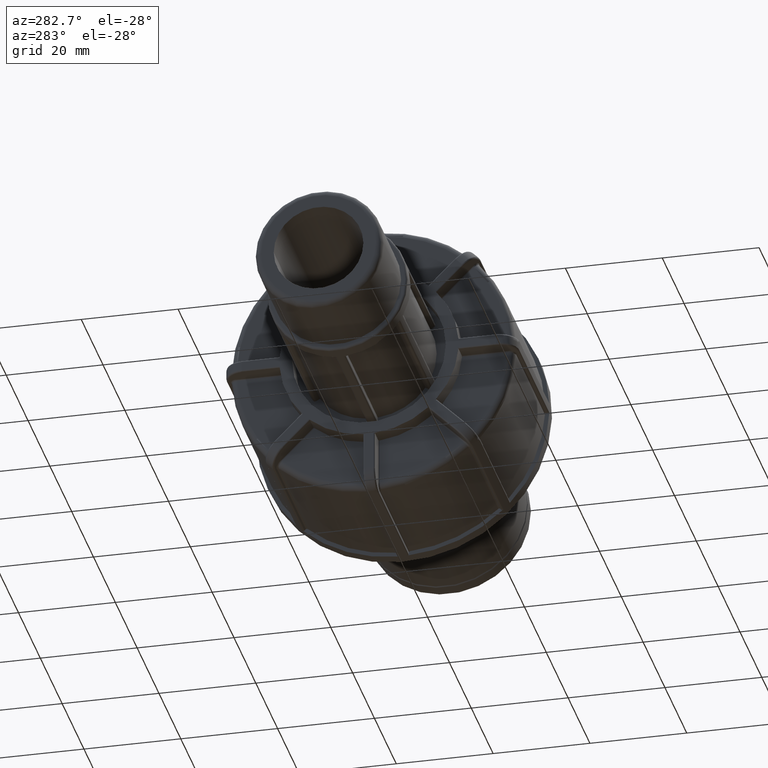
[diagram: clean part render]
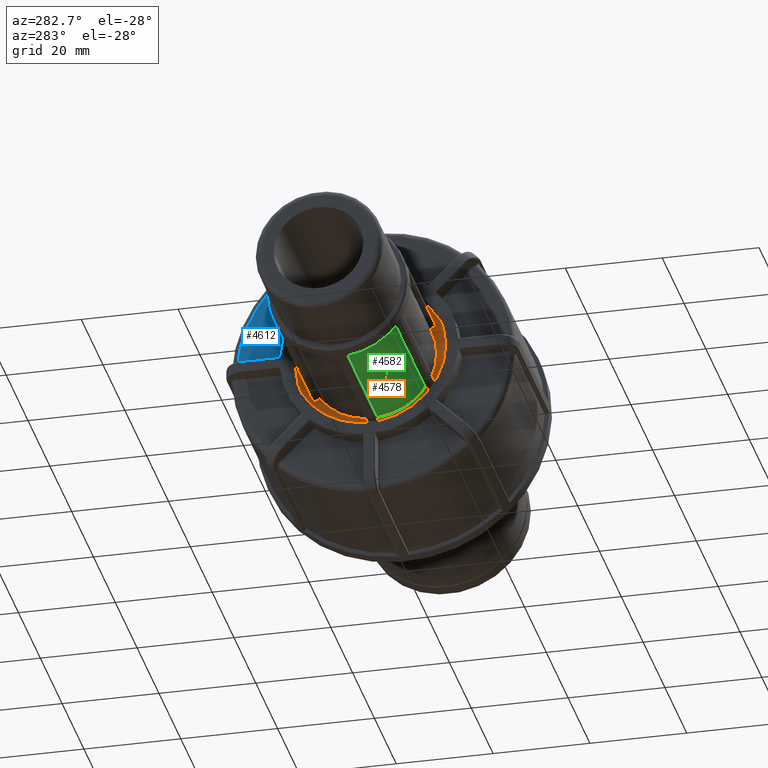
[diagram: same view with three faces highlighted in distinct colors, each labeled with its STEP entity id]
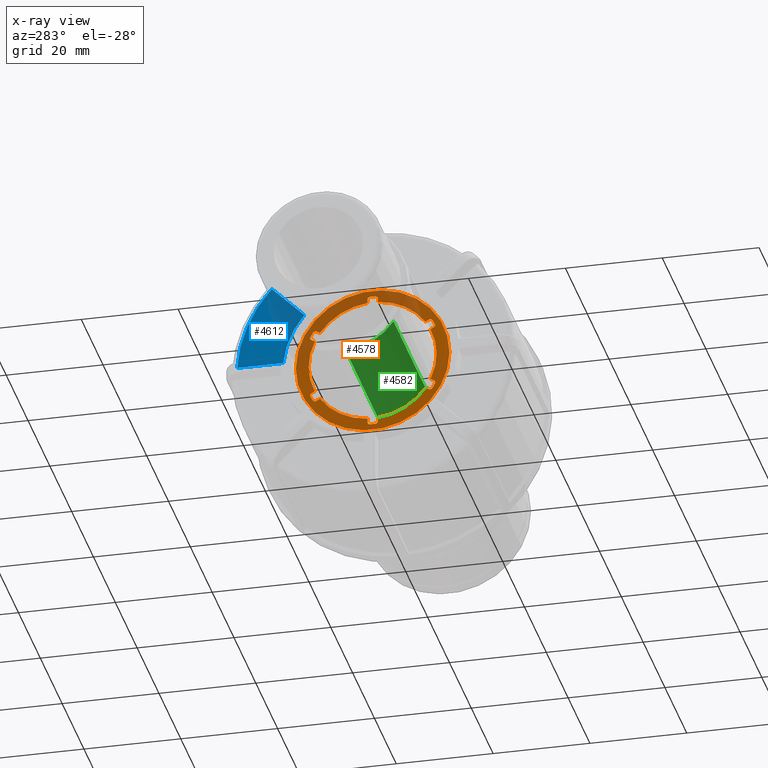
[diagram: x-ray of the same camera — body ghosted, the three highlighted faces saturated]
A machine part, auxiliary view with three faces highlighted in distinct colors.
The next image is the same camera in x-ray (body ghosted, the three faces saturated) — at least one of them is partly hidden behind the body in this view.
Their STEP definitions:

[orange] entity #4578 — the highlighted planar face has unit normal (-1, 0, 0).
#67=FACE_BOUND('',#1348,.T.);
#138=PLANE('',#5040);
#160=LINE('',#6438,#439);
#175=LINE('',#6538,#454);
#180=LINE('',#6594,#459);
#185=LINE('',#6650,#464);
#190=LINE('',#6706,#469);
#197=LINE('',#6771,#476);
#199=LINE('',#6778,#478);
#421=LINE('',#9428,#700);
#424=LINE('',#9434,#703);
#427=LINE('',#9440,#706);
#430=LINE('',#9446,#709);
#431=LINE('',#9452,#710);
#439=VECTOR('',#5137,0.825622215994872);
#454=VECTOR('',#5192,0.825622215994877);
#459=VECTOR('',#5211,0.82562221599487);
#464=VECTOR('',#5230,0.825622215994871);
#469=VECTOR('',#5249,0.82562221599487);
#476=VECTOR('',#5278,0.825622215994871);
#478=VECTOR('',#5286,0.825622215994872);
#700=VECTOR('',#6208,0.825622215994873);
#703=VECTOR('',#6213,0.825622215994872);
#706=VECTOR('',#6218,0.825622215994868);
#709=VECTOR('',#6223,0.82562221599487);
#710=VECTOR('',#6230,0.825622215994872);
#1063=FACE_OUTER_BOUND('',#1347,.T.);
#1347=EDGE_LOOP('',(#4130));
#1348=EDGE_LOOP('',(#4131,#4132,#4133,#4134,#4135,#4136,#4137,#4138,#4139,
#4140,#4141,#4142,#4143,#4144,#4145,#4146,#4147,#4148,#4149,#4150,#4151,
#4152,#4153,#4154,#4155,#4156,#4157,#4158,#4159,#4160,#4161,#4162,#4163,
#4164,#4165,#4166));
#1557=CIRCLE('',#4628,0.52882);
#1558=CIRCLE('',#4630,0.52882);
#1560=CIRCLE('',#4634,14.54255);
#1562=CIRCLE('',#4636,14.54255);
#1564=CIRCLE('',#4638,14.54255);
#1566=CIRCLE('',#4640,14.54255);
#1568=CIRCLE('',#4642,14.54255);
#1570=CIRCLE('',#4644,14.54255);
#1572=CIRCLE('',#4648,0.52882);
#1573=CIRCLE('',#4650,0.52882);
#1575=CIRCLE('',#4655,0.52882);
#1576=CIRCLE('',#4657,0.52882);
#1578=CIRCLE('',#4662,0.52882);
#1579=CIRCLE('',#4664,0.52882);
#1581=CIRCLE('',#4669,0.52882);
#1582=CIRCLE('',#4671,0.52882);
#1586=CIRCLE('',#4680,0.52882);
#1587=CIRCLE('',#4682,0.52882);
#1781=CIRCLE('',#5041,15.8646);
#1782=CIRCLE('',#5042,13.2205);
#1783=CIRCLE('',#5043,13.2205);
#1784=CIRCLE('',#5044,13.2205);
#1785=CIRCLE('',#5045,13.2205);
#1786=CIRCLE('',#5046,13.2205);
#1787=CIRCLE('',#5047,13.2205);
#1818=VERTEX_POINT('',#6425);
#1819=VERTEX_POINT('',#6427);
#1820=VERTEX_POINT('',#6431);
#1821=VERTEX_POINT('',#6433);
#1822=VERTEX_POINT('',#6437);
#1825=VERTEX_POINT('',#6445);
#1828=VERTEX_POINT('',#6451);
#1829=VERTEX_POINT('',#6453);
#1832=VERTEX_POINT('',#6459);
#1833=VERTEX_POINT('',#6461);
#1836=VERTEX_POINT('',#6467);
#1837=VERTEX_POINT('',#6469);
#1840=VERTEX_POINT('',#6475);
#1841=VERTEX_POINT('',#6477);
#1844=VERTEX_POINT('',#6483);
#1849=VERTEX_POINT('',#6529);
#1850=VERTEX_POINT('',#6533);
#1851=VERTEX_POINT('',#6537);
#1857=VERTEX_POINT('',#6585);
#1858=VERTEX_POINT('',#6589);
#1859=VERTEX_POINT('',#6593);
#1865=VERTEX_POINT('',#6641);
#1866=VERTEX_POINT('',#6645);
#1867=VERTEX_POINT('',#6649);
#1873=VERTEX_POINT('',#6697);
#1874=VERTEX_POINT('',#6701);
#1875=VERTEX_POINT('',#6705);
#1883=VERTEX_POINT('',#6759);
#1884=VERTEX_POINT('',#6763);
#1886=VERTEX_POINT('',#6769);
#1888=VERTEX_POINT('',#6777);
#2245=VERTEX_POINT('',#9426);
#2247=VERTEX_POINT('',#9432);
#2249=VERTEX_POINT('',#9438);
#2251=VERTEX_POINT('',#9444);
#2252=VERTEX_POINT('',#9448);
#2253=VERTEX_POINT('',#9451);
#2269=EDGE_CURVE('',#1818,#1819,#1557,.F.);
#2272=EDGE_CURVE('',#1820,#1821,#1558,.F.);
#2274=EDGE_CURVE('',#1822,#1819,#160,.T.);
#2278=EDGE_CURVE('',#1825,#1821,#1560,.T.);
#2282=EDGE_CURVE('',#1829,#1828,#1562,.T.);
#2286=EDGE_CURVE('',#1833,#1832,#1564,.T.);
#2290=EDGE_CURVE('',#1837,#1836,#1566,.T.);
#2294=EDGE_CURVE('',#1841,#1840,#1568,.T.);
#2298=EDGE_CURVE('',#1818,#1844,#1570,.T.);
#2304=EDGE_CURVE('',#1841,#1849,#1572,.F.);
#2307=EDGE_CURVE('',#1850,#1844,#1573,.F.);
#2308=EDGE_CURVE('',#1851,#1849,#175,.T.);
#2316=EDGE_CURVE('',#1837,#1857,#1575,.F.);
#2319=EDGE_CURVE('',#1858,#1840,#1576,.F.);
#2320=EDGE_CURVE('',#1859,#1857,#180,.T.);
#2328=EDGE_CURVE('',#1833,#1865,#1578,.F.);
#2331=EDGE_CURVE('',#1866,#1836,#1579,.F.);
#2332=EDGE_CURVE('',#1867,#1865,#185,.T.);
#2340=EDGE_CURVE('',#1829,#1873,#1581,.F.);
#2343=EDGE_CURVE('',#1874,#1832,#1582,.F.);
#2344=EDGE_CURVE('',#1875,#1873,#190,.T.);
#2355=EDGE_CURVE('',#1883,#1828,#1586,.F.);
#2356=EDGE_CURVE('',#1825,#1884,#1587,.F.);
#2360=EDGE_CURVE('',#1883,#1886,#197,.T.);
#2363=EDGE_CURVE('',#1888,#1884,#199,.T.);
#2905=EDGE_CURVE('',#1874,#2245,#421,.T.);
#2908=EDGE_CURVE('',#1866,#2247,#424,.T.);
#2911=EDGE_CURVE('',#1858,#2249,#427,.T.);
#2914=EDGE_CURVE('',#1850,#2251,#430,.T.);
#2915=EDGE_CURVE('',#2252,#2252,#1781,.T.);
#2916=EDGE_CURVE('',#1886,#1888,#1782,.T.);
#2917=EDGE_CURVE('',#1820,#2253,#431,.T.);
#2918=EDGE_CURVE('',#2253,#1822,#1783,.T.);
#2919=EDGE_CURVE('',#2251,#1851,#1784,.T.);
#2920=EDGE_CURVE('',#2249,#1859,#1785,.T.);
#2921=EDGE_CURVE('',#2247,#1867,#1786,.T.);
#2922=EDGE_CURVE('',#2245,#1875,#1787,.T.);
#4130=ORIENTED_EDGE('',*,*,#2915,.F.);
#4131=ORIENTED_EDGE('',*,*,#2344,.T.);
#4132=ORIENTED_EDGE('',*,*,#2340,.F.);
#4133=ORIENTED_EDGE('',*,*,#2282,.T.);
#4134=ORIENTED_EDGE('',*,*,#2355,.F.);
#4135=ORIENTED_EDGE('',*,*,#2360,.T.);
#4136=ORIENTED_EDGE('',*,*,#2916,.T.);
#4137=ORIENTED_EDGE('',*,*,#2363,.T.);
#4138=ORIENTED_EDGE('',*,*,#2356,.F.);
#4139=ORIENTED_EDGE('',*,*,#2278,.T.);
#4140=ORIENTED_EDGE('',*,*,#2272,.F.);
#4141=ORIENTED_EDGE('',*,*,#2917,.T.);
#4142=ORIENTED_EDGE('',*,*,#2918,.T.);
#4143=ORIENTED_EDGE('',*,*,#2274,.T.);
#4144=ORIENTED_EDGE('',*,*,#2269,.F.);
#4145=ORIENTED_EDGE('',*,*,#2298,.T.);
#4146=ORIENTED_EDGE('',*,*,#2307,.F.);
#4147=ORIENTED_EDGE('',*,*,#2914,.T.);
#4148=ORIENTED_EDGE('',*,*,#2919,.T.);
#4149=ORIENTED_EDGE('',*,*,#2308,.T.);
#4150=ORIENTED_EDGE('',*,*,#2304,.F.);
#4151=ORIENTED_EDGE('',*,*,#2294,.T.);
#4152=ORIENTED_EDGE('',*,*,#2319,.F.);
#4153=ORIENTED_EDGE('',*,*,#2911,.T.);
#4154=ORIENTED_EDGE('',*,*,#2920,.T.);
#4155=ORIENTED_EDGE('',*,*,#2320,.T.);
#4156=ORIENTED_EDGE('',*,*,#2316,.F.);
#4157=ORIENTED_EDGE('',*,*,#2290,.T.);
#4158=ORIENTED_EDGE('',*,*,#2331,.F.);
#4159=ORIENTED_EDGE('',*,*,#2908,.T.);
#4160=ORIENTED_EDGE('',*,*,#2921,.T.);
#4161=ORIENTED_EDGE('',*,*,#2332,.T.);
#4162=ORIENTED_EDGE('',*,*,#2328,.F.);
#4163=ORIENTED_EDGE('',*,*,#2286,.T.);
#4164=ORIENTED_EDGE('',*,*,#2343,.F.);
#4165=ORIENTED_EDGE('',*,*,#2905,.T.);
#4166=ORIENTED_EDGE('',*,*,#2922,.T.);
#4578=ADVANCED_FACE('',(#1063,#67),#138,.T.);
#4628=AXIS2_PLACEMENT_3D('',#6428,#5126,#5127);
#4630=AXIS2_PLACEMENT_3D('',#6434,#5132,#5133);
#4634=AXIS2_PLACEMENT_3D('',#6446,#5144,#5145);
#4636=AXIS2_PLACEMENT_3D('',#6454,#5150,#5151);
#4638=AXIS2_PLACEMENT_3D('',#6462,#5156,#5157);
#4640=AXIS2_PLACEMENT_3D('',#6470,#5162,#5163);
#4642=AXIS2_PLACEMENT_3D('',#6478,#5168,#5169);
#4644=AXIS2_PLACEMENT_3D('',#6485,#5174,#5175);
#4648=AXIS2_PLACEMENT_3D('',#6530,#5182,#5183);
#4650=AXIS2_PLACEMENT_3D('',#6535,#5188,#5189);
#4655=AXIS2_PLACEMENT_3D('',#6586,#5201,#5202);
#4657=AXIS2_PLACEMENT_3D('',#6591,#5207,#5208);
#4662=AXIS2_PLACEMENT_3D('',#6642,#5220,#5221);
#4664=AXIS2_PLACEMENT_3D('',#6647,#5226,#5227);
#4669=AXIS2_PLACEMENT_3D('',#6698,#5239,#5240);
#4671=AXIS2_PLACEMENT_3D('',#6703,#5245,#5246);
#4680=AXIS2_PLACEMENT_3D('',#6761,#5267,#5268);
#4682=AXIS2_PLACEMENT_3D('',#6764,#5271,#5272);
#5040=AXIS2_PLACEMENT_3D('',#9447,#6224,#6225);
#5041=AXIS2_PLACEMENT_3D('',#9449,#6226,#6227);
#5042=AXIS2_PLACEMENT_3D('',#9450,#6228,#6229);
#5043=AXIS2_PLACEMENT_3D('',#9453,#6231,#6232);
#5044=AXIS2_PLACEMENT_3D('',#9454,#6233,#6234);
#5045=AXIS2_PLACEMENT_3D('',#9455,#6235,#6236);
#5046=AXIS2_PLACEMENT_3D('',#9456,#6237,#6238);
#5047=AXIS2_PLACEMENT_3D('',#9457,#6239,#6240);
#5126=DIRECTION('center_axis',(1.,0.,0.));
#5127=DIRECTION('ref_axis',(0.,-0.240544693327656,0.970638063601415));
#5132=DIRECTION('center_axis',(1.,0.,0.));
#5133=DIRECTION('ref_axis',(0.,-0.720324874295137,0.69363684696799));
#5137=DIRECTION('',(0.,-0.866025403784439,0.5));
#5144=DIRECTION('center_axis',(1.,0.,0.));
#5145=DIRECTION('ref_axis',(0.,0.,-1.));
#5150=DIRECTION('center_axis',(1.,0.,0.));
#5151=DIRECTION('ref_axis',(0.,-0.866025403784439,-0.499999999999999));
#5156=DIRECTION('center_axis',(1.,0.,0.));
#5157=DIRECTION('ref_axis',(0.,-0.866025403784438,0.5));
#5162=DIRECTION('center_axis',(1.,0.,0.));
#5163=DIRECTION('ref_axis',(0.,1.52686155402616E-16,1.));
#5168=DIRECTION('center_axis',(1.,0.,0.));
#5169=DIRECTION('ref_axis',(0.,0.866025403784439,0.5));
#5174=DIRECTION('center_axis',(1.,0.,0.));
#5175=DIRECTION('ref_axis',(0.,0.866025403784439,-0.5));
#5182=DIRECTION('center_axis',(1.,0.,0.));
#5183=DIRECTION('ref_axis',(0.,-0.960869567622788,0.277001216633423));
#5188=DIRECTION('center_axis',(1.,0.,0.));
#5189=DIRECTION('ref_axis',(0.,-0.960869567622788,-0.277001216633422));
#5192=DIRECTION('',(0.,-0.866025403784439,-0.5));
#5201=DIRECTION('center_axis',(1.,0.,0.));
#5202=DIRECTION('ref_axis',(0.,-0.720324874295137,-0.693636846967991));
#5207=DIRECTION('center_axis',(1.,0.,0.));
#5208=DIRECTION('ref_axis',(0.,-0.240544693327657,-0.970638063601414));
#5211=DIRECTION('',(0.,-1.66533453693773E-16,-1.));
#5220=DIRECTION('center_axis',(1.,0.,0.));
#5221=DIRECTION('ref_axis',(0.,0.240544693327656,-0.970638063601415));
#5226=DIRECTION('center_axis',(1.,0.,0.));
#5227=DIRECTION('ref_axis',(0.,0.720324874295137,-0.69363684696799));
#5230=DIRECTION('',(0.,0.866025403784438,-0.5));
#5239=DIRECTION('center_axis',(1.,0.,0.));
#5240=DIRECTION('ref_axis',(0.,0.960869567622789,-0.277001216633421));
#5245=DIRECTION('center_axis',(1.,0.,0.));
#5246=DIRECTION('ref_axis',(0.,0.960869567622788,0.277001216633422));
#5249=DIRECTION('',(0.,0.866025403784439,0.499999999999999));
#5267=DIRECTION('center_axis',(1.,0.,0.));
#5268=DIRECTION('ref_axis',(0.,0.240544693327656,0.970638063601415));
#5271=DIRECTION('center_axis',(1.,0.,0.));
#5272=DIRECTION('ref_axis',(0.,0.720324874295136,0.693636846967991));
#5278=DIRECTION('',(0.,-0.866025403784439,-0.499999999999999));
#5286=DIRECTION('',(0.,0.,1.));
#6208=DIRECTION('',(0.,-0.866025403784438,0.5));
#6213=DIRECTION('',(0.,1.66533453693773E-16,1.));
#6218=DIRECTION('',(0.,0.866025403784439,0.5));
#6223=DIRECTION('',(0.,0.866025403784438,-0.5));
#6224=DIRECTION('center_axis',(-1.,0.,0.));
#6225=DIRECTION('ref_axis',(0.,0.,1.));
#6226=DIRECTION('center_axis',(1.,0.,0.));
#6227=DIRECTION('ref_axis',(0.,0.,-1.));
#6228=DIRECTION('center_axis',(1.,0.,0.));
#6229=DIRECTION('ref_axis',(0.,0.,-1.));
#6230=DIRECTION('',(0.,0.,-1.));
#6231=DIRECTION('center_axis',(1.,0.,0.));
#6232=DIRECTION('ref_axis',(0.,0.,-1.));
#6233=DIRECTION('center_axis',(1.,0.,0.));
#6234=DIRECTION('ref_axis',(0.,0.,-1.));
#6235=DIRECTION('center_axis',(1.,0.,0.));
#6236=DIRECTION('ref_axis',(0.,0.,-1.));
#6237=DIRECTION('center_axis',(1.,0.,0.));
#6238=DIRECTION('ref_axis',(0.,0.,-1.));
#6239=DIRECTION('center_axis',(1.,0.,0.));
#6240=DIRECTION('ref_axis',(0.,0.,-1.));
#6425=CARTESIAN_POINT('',(-70.4,-12.3108597582657,7.74134952800957));
#6427=CARTESIAN_POINT('',(-70.4,-11.5987821306924,7.91781746283851));
#6428=CARTESIAN_POINT('Origin',(-70.4,-11.8631921306924,7.45984590880922));
#6431=CARTESIAN_POINT('',(-70.4,-1.05764,14.0037487095599));
#6433=CARTESIAN_POINT('',(-70.4,-0.548775471698113,14.5321920570904));
#6434=CARTESIAN_POINT('Origin',(-70.4,-0.528819999999999,14.0037487095599));
#6437=CARTESIAN_POINT('',(-70.4,-10.883772317712,7.50500635484108));
#6438=CARTESIAN_POINT('',(-70.4,0.771748841143978,0.775688076230175));
#6445=CARTESIAN_POINT('',(-70.4,0.548775471698114,14.5321920570904));
#6446=CARTESIAN_POINT('Origin',(-70.4,0.,0.));
#6451=CARTESIAN_POINT('',(-70.4,12.3108597582657,7.74134952800957));
#6453=CARTESIAN_POINT('',(-70.4,12.8596352299638,6.79084252908086));
#6454=CARTESIAN_POINT('Origin',(-70.4,0.,0.));
#6459=CARTESIAN_POINT('',(-70.4,12.8596352299638,-6.79084252908087));
#6461=CARTESIAN_POINT('',(-70.4,12.3108597582657,-7.74134952800958));
#6462=CARTESIAN_POINT('Origin',(-70.4,0.,0.));
#6467=CARTESIAN_POINT('',(-70.4,0.548775471698111,-14.5321920570904));
#6469=CARTESIAN_POINT('',(-70.4,-0.548775471698116,-14.5321920570904));
#6470=CARTESIAN_POINT('Origin',(-70.4,0.,0.));
#6475=CARTESIAN_POINT('',(-70.4,-12.3108597582657,-7.74134952800957));
#6477=CARTESIAN_POINT('',(-70.4,-12.8596352299638,-6.79084252908086));
#6478=CARTESIAN_POINT('Origin',(-70.4,0.,0.));
#6483=CARTESIAN_POINT('',(-70.4,-12.8596352299638,6.79084252908086));
#6485=CARTESIAN_POINT('Origin',(-70.4,0.,0.));
#6529=CARTESIAN_POINT('',(-70.4,-12.6564221306924,-6.08593124672137));
#6530=CARTESIAN_POINT('Origin',(-70.4,-12.3920121306924,-6.54390280075065));
#6533=CARTESIAN_POINT('',(-70.4,-12.6564221306924,6.08593124672137));
#6535=CARTESIAN_POINT('Origin',(-70.4,-12.3920121306924,6.54390280075065));
#6537=CARTESIAN_POINT('',(-70.4,-11.941412317712,-5.67312013872393));
#6538=CARTESIAN_POINT('',(-70.4,-0.285891158856021,1.05619813988697));
#6585=CARTESIAN_POINT('',(-70.4,-1.05764,-14.0037487095599));
#6586=CARTESIAN_POINT('Origin',(-70.4,-0.528820000000002,-14.0037487095599));
#6589=CARTESIAN_POINT('',(-70.4,-11.5987821306924,-7.91781746283851));
#6591=CARTESIAN_POINT('Origin',(-70.4,-11.8631921306924,-7.45984590880922));
#6593=CARTESIAN_POINT('',(-70.4,-1.05764,-13.178126493565));
#6594=CARTESIAN_POINT('',(-70.4,-1.05764,-6.5890632467825));
#6641=CARTESIAN_POINT('',(-70.4,11.5987821306924,-7.91781746283852));
#6642=CARTESIAN_POINT('Origin',(-70.4,11.8631921306924,-7.45984590880923));
#6645=CARTESIAN_POINT('',(-70.4,1.05764,-14.0037487095599));
#6647=CARTESIAN_POINT('Origin',(-70.4,0.528819999999998,-14.0037487095599));
#6649=CARTESIAN_POINT('',(-70.4,10.883772317712,-7.50500635484108));
#6650=CARTESIAN_POINT('',(-70.4,11.126701158856,-7.64526138666948));
#6697=CARTESIAN_POINT('',(-70.4,12.6564221306924,6.08593124672135));
#6698=CARTESIAN_POINT('Origin',(-70.4,12.3920121306924,6.54390280075064));
#6701=CARTESIAN_POINT('',(-70.4,12.6564221306924,-6.08593124672137));
#6703=CARTESIAN_POINT('Origin',(-70.4,12.3920121306924,-6.54390280075066));
#6705=CARTESIAN_POINT('',(-70.4,11.9414123177121,5.67312013872392));
#6706=CARTESIAN_POINT('',(-70.4,12.184341158856,5.81337517055232));
#6759=CARTESIAN_POINT('',(-70.4,11.5987821306924,7.9178174628385));
#6761=CARTESIAN_POINT('Origin',(-70.4,11.8631921306924,7.45984590880922));
#6763=CARTESIAN_POINT('',(-70.4,1.05764,14.0037487095599));
#6764=CARTESIAN_POINT('Origin',(-70.4,0.528820000000001,14.0037487095599));
#6769=CARTESIAN_POINT('',(-70.4,10.8837723177121,7.50500635484107));
#6771=CARTESIAN_POINT('',(-70.4,11.7008382772444,7.97673960652275));
#6777=CARTESIAN_POINT('',(-70.4,1.05764,13.178126493565));
#6778=CARTESIAN_POINT('',(-70.4,1.05764,6.5890632467825));
#9426=CARTESIAN_POINT('',(-70.4,11.941412317712,-5.67312013872394));
#9428=CARTESIAN_POINT('',(-70.4,12.7584782772444,-6.14485339040562));
#9432=CARTESIAN_POINT('',(-70.4,1.05764,-13.178126493565));
#9434=CARTESIAN_POINT('',(-70.4,1.05764,-7.25201968648907));
#9438=CARTESIAN_POINT('',(-70.4,-10.883772317712,-7.50500635484108));
#9440=CARTESIAN_POINT('',(-70.4,0.197611722755606,-1.10716629608346));
#9444=CARTESIAN_POINT('',(-70.4,-11.941412317712,5.67312013872393));
#9446=CARTESIAN_POINT('',(-70.4,-0.860028277244396,-0.724719920033691));
#9447=CARTESIAN_POINT('Origin',(-70.4,15.8646,0.));
#9448=CARTESIAN_POINT('',(-70.4,15.8646,0.));
#9449=CARTESIAN_POINT('Origin',(-70.4,0.,0.));
#9450=CARTESIAN_POINT('Origin',(-70.4,0.,0.));
#9451=CARTESIAN_POINT('',(-70.4,-1.05764,13.178126493565));
#9452=CARTESIAN_POINT('',(-70.4,-1.05764,7.25201968648907));
#9453=CARTESIAN_POINT('Origin',(-70.4,0.,0.));
#9454=CARTESIAN_POINT('Origin',(-70.4,0.,0.));
#9455=CARTESIAN_POINT('Origin',(-70.4,0.,0.));
#9456=CARTESIAN_POINT('Origin',(-70.4,0.,0.));
#9457=CARTESIAN_POINT('Origin',(-70.4,0.,0.));

[blue] entity #4612 — the highlighted planar face has unit normal (-1, 0, 0).
#153=PLANE('',#5101);
#401=LINE('',#9113,#680);
#418=LINE('',#9420,#697);
#680=VECTOR('',#6116,9.53280203453431);
#697=VECTOR('',#6199,9.53280203453498);
#1097=FACE_OUTER_BOUND('',#1386,.T.);
#1386=EDGE_LOOP('',(#4300,#4301,#4302,#4303));
#1780=CIRCLE('',#5035,18.5087);
#1804=CIRCLE('',#5094,28.02045);
#2219=VERTEX_POINT('',#9098);
#2221=VERTEX_POINT('',#9111);
#2242=VERTEX_POINT('',#9401);
#2243=VERTEX_POINT('',#9409);
#2855=EDGE_CURVE('',#2221,#2219,#401,.T.);
#2901=EDGE_CURVE('',#2243,#2242,#418,.T.);
#2902=EDGE_CURVE('',#2243,#2219,#1780,.T.);
#2942=EDGE_CURVE('',#2242,#2221,#1804,.T.);
#4300=ORIENTED_EDGE('',*,*,#2855,.F.);
#4301=ORIENTED_EDGE('',*,*,#2942,.F.);
#4302=ORIENTED_EDGE('',*,*,#2901,.F.);
#4303=ORIENTED_EDGE('',*,*,#2902,.T.);
#4612=ADVANCED_FACE('',(#1097),#153,.T.);
#5035=AXIS2_PLACEMENT_3D('',#9422,#6202,#6203);
#5094=AXIS2_PLACEMENT_3D('',#9509,#6336,#6337);
#5101=AXIS2_PLACEMENT_3D('',#9519,#6350,#6351);
#6116=DIRECTION('',(0.,-0.707106781186548,-0.707106781186547));
#6199=DIRECTION('',(0.,1.,-9.43689570931383E-16));
#6202=DIRECTION('center_axis',(1.,0.,0.));
#6203=DIRECTION('ref_axis',(0.,0.,-1.));
#6336=DIRECTION('center_axis',(1.,0.,0.));
#6337=DIRECTION('ref_axis',(0.,-1.,1.83697019872103E-16));
#6350=DIRECTION('center_axis',(-1.,0.,0.));
#6351=DIRECTION('ref_axis',(0.,0.,1.));
#9098=CARTESIAN_POINT('',(-70.4,14.1133542541315,11.9743562410422));
#9111=CARTESIAN_POINT('',(-70.4,20.8540632164597,18.7150652033704));
#9113=CARTESIAN_POINT('',(-70.4,14.0141071269507,11.8751091138614));
#9401=CARTESIAN_POINT('',(-70.4,27.9795990313038,1.51249999999993));
#9409=CARTESIAN_POINT('',(-70.4,18.4467969967688,1.51249999999999));
#9420=CARTESIAN_POINT('',(-70.4,29.7841451561241,1.51249999999998));
#9422=CARTESIAN_POINT('Origin',(-70.4,0.,0.));
#9509=CARTESIAN_POINT('Origin',(-70.4,0.,0.));
#9519=CARTESIAN_POINT('Origin',(-70.4,29.3425,0.));

[green] entity #4582 — the highlighted cylindrical surface (partial cylindrical patch) has radius 13.2205 mm, axis along (1, 0, 0).
#181=LINE('',#6596,#460);
#426=LINE('',#9439,#705);
#460=VECTOR('',#5212,29.2);
#705=VECTOR('',#6217,29.2);
#826=CYLINDRICAL_SURFACE('',#5053,13.2205);
#1067=FACE_OUTER_BOUND('',#1352,.T.);
#1352=EDGE_LOOP('',(#4179,#4180,#4181,#4182));
#1785=CIRCLE('',#5045,13.2205);
#1790=CIRCLE('',#5054,13.2205);
#1859=VERTEX_POINT('',#6593);
#1860=VERTEX_POINT('',#6595);
#2248=VERTEX_POINT('',#9436);
#2249=VERTEX_POINT('',#9438);
#2321=EDGE_CURVE('',#1860,#1859,#181,.T.);
#2910=EDGE_CURVE('',#2249,#2248,#426,.T.);
#2920=EDGE_CURVE('',#2249,#1859,#1785,.T.);
#2926=EDGE_CURVE('',#2248,#1860,#1790,.T.);
#4179=ORIENTED_EDGE('',*,*,#2321,.T.);
#4180=ORIENTED_EDGE('',*,*,#2920,.F.);
#4181=ORIENTED_EDGE('',*,*,#2910,.T.);
#4182=ORIENTED_EDGE('',*,*,#2926,.T.);
#4582=ADVANCED_FACE('',(#1067),#826,.T.);
#5045=AXIS2_PLACEMENT_3D('',#9455,#6235,#6236);
#5053=AXIS2_PLACEMENT_3D('',#9465,#6252,#6253);
#5054=AXIS2_PLACEMENT_3D('',#9466,#6254,#6255);
#5212=DIRECTION('',(1.,0.,0.));
#6217=DIRECTION('',(-1.,0.,0.));
#6235=DIRECTION('center_axis',(1.,0.,0.));
#6236=DIRECTION('ref_axis',(0.,0.,-1.));
#6252=DIRECTION('center_axis',(1.,0.,0.));
#6253=DIRECTION('ref_axis',(0.,1.,0.));
#6254=DIRECTION('center_axis',(1.,0.,0.));
#6255=DIRECTION('ref_axis',(0.,0.,-1.));
#6593=CARTESIAN_POINT('',(-70.4,-1.05764,-13.178126493565));
#6595=CARTESIAN_POINT('',(-99.6,-1.05764,-13.178126493565));
#6596=CARTESIAN_POINT('',(-85.,-1.05764,-13.178126493565));
#9436=CARTESIAN_POINT('',(-99.6,-10.883772317712,-7.50500635484108));
#9438=CARTESIAN_POINT('',(-70.4,-10.883772317712,-7.50500635484108));
#9439=CARTESIAN_POINT('',(-85.,-10.883772317712,-7.50500635484108));
#9455=CARTESIAN_POINT('Origin',(-70.4,0.,0.));
#9465=CARTESIAN_POINT('Origin',(-85.,0.,0.));
#9466=CARTESIAN_POINT('Origin',(-99.6,0.,0.));